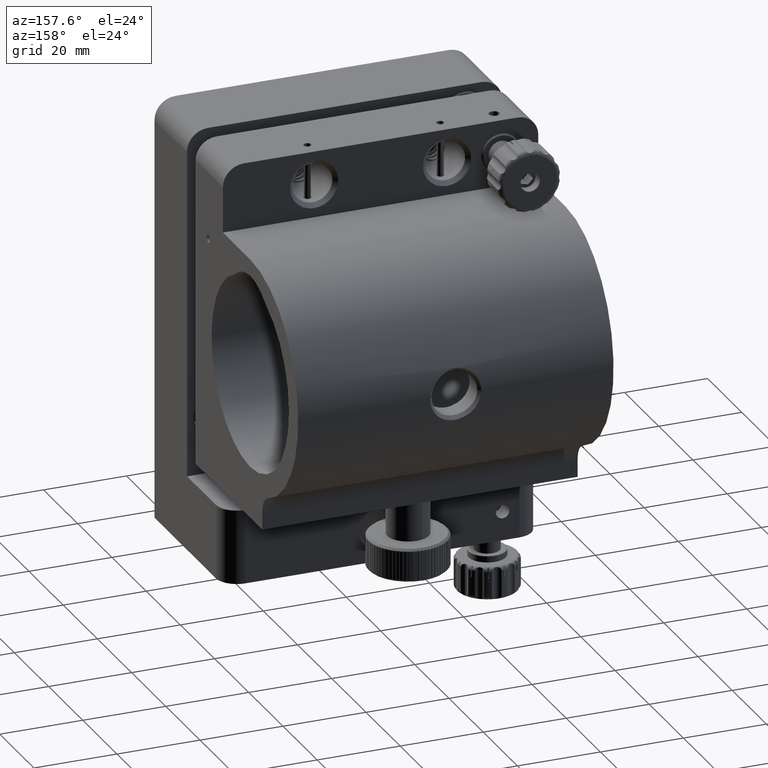
[diagram: clean part render]
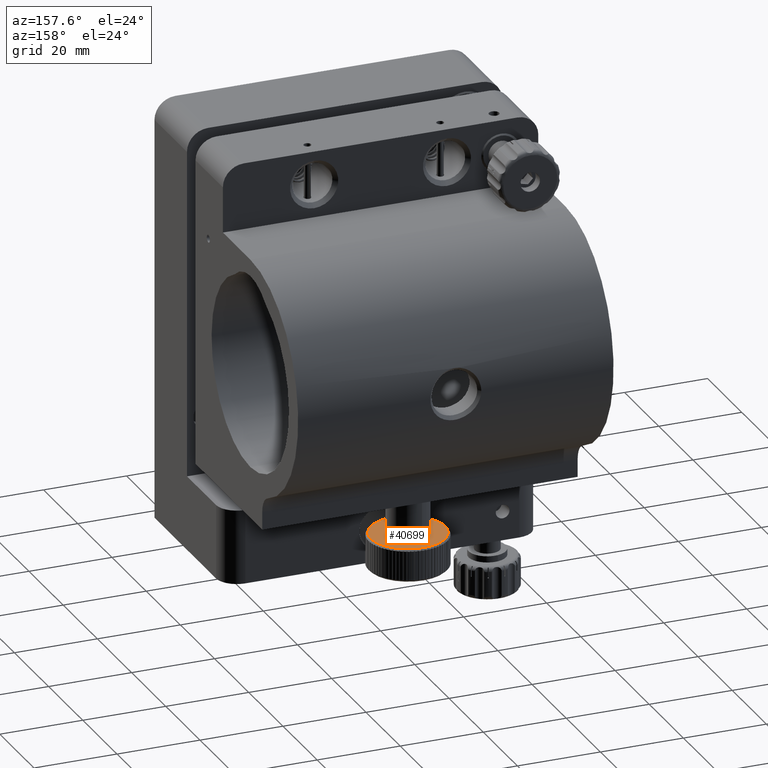
[diagram: same view with one face highlighted and labeled with its STEP entity id]
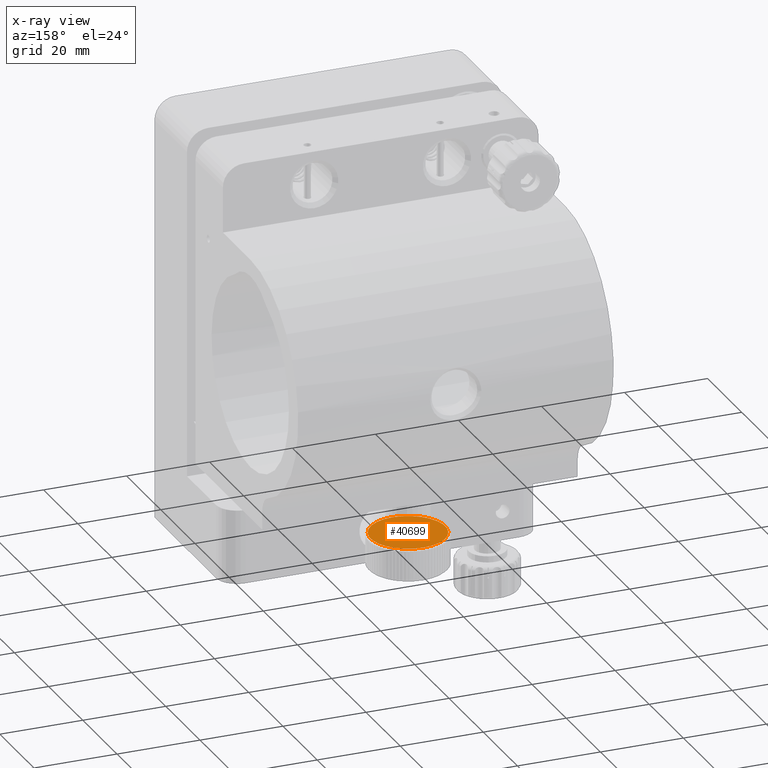
[diagram: x-ray of the same camera — body ghosted, the highlighted face saturated]
A machine part, auxiliary view. The second image highlights one B-rep face of the part: STEP entity #40699.
The next image is the same camera in x-ray: the body ghosted, the highlighted face saturated — about 0% of this face is hidden behind the body in this view.
In plain terms, the highlighted planar face has unit normal (0, 0, 1).
Its self-contained STEP definition (entity closure, byte-faithful):
#5627 = ORIENTED_EDGE ( 'NONE', *, *, #33518, .F. ) ;
#5707 = CIRCLE ( 'NONE', #34599, 3.999999999999999600 ) ;
#6152 = ORIENTED_EDGE ( 'NONE', *, *, #6741, .T. ) ;
#6741 = EDGE_CURVE ( 'NONE', #20814, #10185, #37482, .T. ) ;
#6794 = FACE_OUTER_BOUND ( 'NONE', #40592, .T. ) ;
#7987 = AXIS2_PLACEMENT_3D ( 'NONE', #33579, #50981, #21000 ) ;
#8228 = VERTEX_POINT ( 'NONE', #17906 ) ;
#8732 = DIRECTION ( 'NONE',  ( 7.812390546798650600E-017, 5.622427941681873300E-015, 1.000000000000000000 ) ) ;
#9069 = CARTESIAN_POINT ( 'NONE',  ( 3.727400946907008600, 57.45137251627396300, -45.00000000000028400 ) ) ;
#9120 = EDGE_LOOP ( 'NONE', ( #5627, #15594 ) ) ;
#9711 = DIRECTION ( 'NONE',  ( 0.9318502367267484900, 0.3628431290686138200, -2.112859127127036000E-015 ) ) ;
#9736 = VERTEX_POINT ( 'NONE', #9069 ) ;
#9959 = CARTESIAN_POINT ( 'NONE',  ( 6.957648504084257200E-015, 55.99999999999953100, -45.00000000000027700 ) ) ;
#10185 = VERTEX_POINT ( 'NONE', #39364 ) ;
#12376 = AXIS2_PLACEMENT_3D ( 'NONE', #51086, #8732, #51280 ) ;
#12596 = EDGE_CURVE ( 'NONE', #9736, #8228, #5707, .T. ) ;
#13662 = CARTESIAN_POINT ( 'NONE',  ( 6.957648504084257200E-015, 55.99999999999953100, -45.00000000000027700 ) ) ;
#15594 = ORIENTED_EDGE ( 'NONE', *, *, #12596, .F. ) ;
#17906 = CARTESIAN_POINT ( 'NONE',  ( -3.727400946906980600, 54.54862748372505600, -45.00000000000027000 ) ) ;
#19364 = AXIS2_PLACEMENT_3D ( 'NONE', #9959, #22907, #31539 ) ;
#20795 = CARTESIAN_POINT ( 'NONE',  ( 6.957648504084257200E-015, 55.99999999999953100, -45.00000000000027700 ) ) ;
#20814 = VERTEX_POINT ( 'NONE', #48871 ) ;
#21000 = DIRECTION ( 'NONE',  ( 0.9318502367267486000, 0.3628431290686138800, -2.312964634635742700E-015 ) ) ;
#22907 = DIRECTION ( 'NONE',  ( 7.812390546798650600E-017, 5.622427941681873300E-015, 1.000000000000000000 ) ) ;
#23452 = ORIENTED_EDGE ( 'NONE', *, *, #41541, .T. ) ;
#26231 = DIRECTION ( 'NONE',  ( 7.812390546800303500E-017, 5.622427941681880400E-015, 1.000000000000000000 ) ) ;
#29841 = DIRECTION ( 'NONE',  ( 7.812390546798650600E-017, 5.622427941681873300E-015, 1.000000000000000000 ) ) ;
#31539 = DIRECTION ( 'NONE',  ( 0.9318502367267486000, 0.3628431290686138800, -2.312964634635742700E-015 ) ) ;
#33518 = EDGE_CURVE ( 'NONE', #8228, #9736, #46011, .T. ) ;
#33579 = CARTESIAN_POINT ( 'NONE',  ( 6.957648504084257200E-015, 55.99999999999953100, -45.00000000000027700 ) ) ;
#34599 = AXIS2_PLACEMENT_3D ( 'NONE', #20795, #29841, #38067 ) ;
#37482 = CIRCLE ( 'NONE', #7987, 9.000000000000000000 ) ;
#38067 = DIRECTION ( 'NONE',  ( 0.9318502367267487200, 0.3628431290686133200, -1.734723475976807300E-015 ) ) ;
#39364 = CARTESIAN_POINT ( 'NONE',  ( -8.386652130540731800, 52.73441183838200200, -45.00000000000025600 ) ) ;
#39717 = FACE_BOUND ( 'NONE', #9120, .T. ) ;
#39900 = PLANE ( 'NONE',  #55219 ) ;
#40592 = EDGE_LOOP ( 'NONE', ( #23452, #6152 ) ) ;
#40699 = ADVANCED_FACE ( 'NONE', ( #6794, #39717 ), #39900, .T. ) ;
#41541 = EDGE_CURVE ( 'NONE', #10185, #20814, #50521, .T. ) ;
#46011 = CIRCLE ( 'NONE', #12376, 3.999999999999999600 ) ;
#48871 = CARTESIAN_POINT ( 'NONE',  ( 8.386652130540742400, 59.26558816161705300, -45.00000000000029800 ) ) ;
#50521 = CIRCLE ( 'NONE', #19364, 9.000000000000000000 ) ;
#50981 = DIRECTION ( 'NONE',  ( 7.812390546798650600E-017, 5.622427941681873300E-015, 1.000000000000000000 ) ) ;
#51086 = CARTESIAN_POINT ( 'NONE',  ( 6.957648504084257200E-015, 55.99999999999953100, -45.00000000000027700 ) ) ;
#51280 = DIRECTION ( 'NONE',  ( 0.9318502367267487200, 0.3628431290686133200, -1.734723475976807300E-015 ) ) ;
#55219 = AXIS2_PLACEMENT_3D ( 'NONE', #13662, #26231, #9711 ) ;